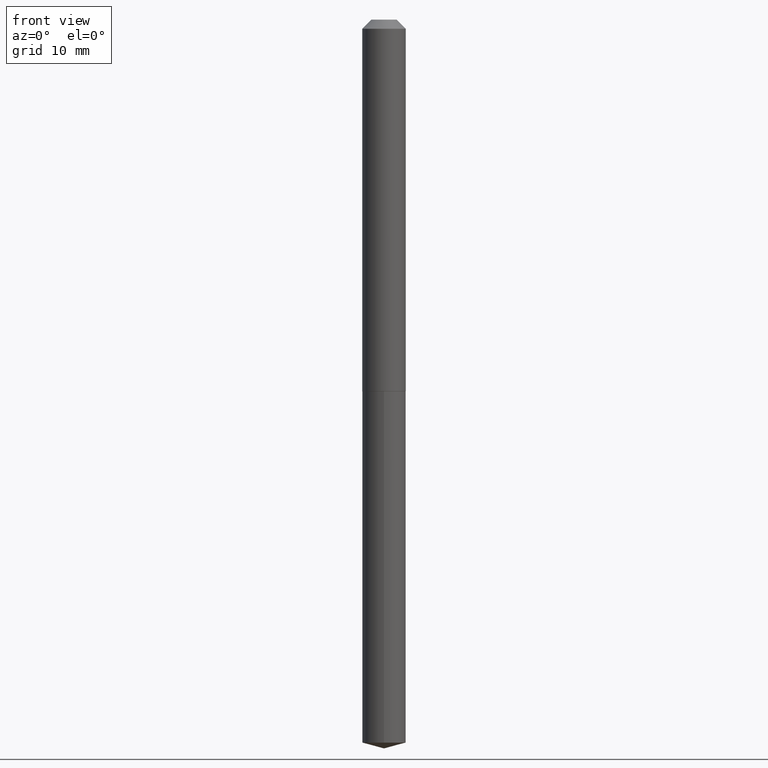
[diagram: clean part render]
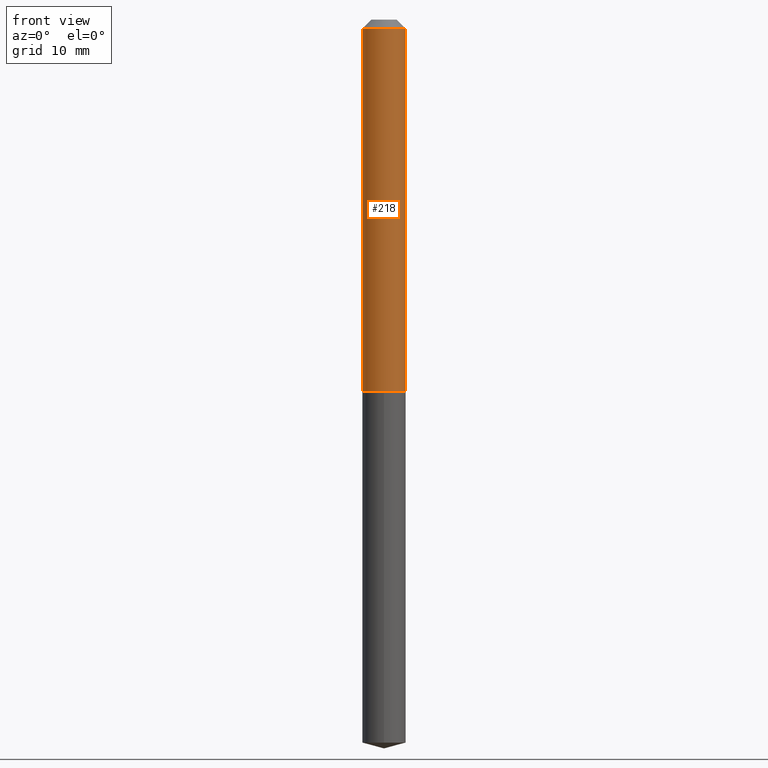
[diagram: same view with one face highlighted and labeled with its STEP entity id]
A machine part, front view. The second image highlights one B-rep face of the part: STEP entity #218.
In plain terms, the highlighted cylindrical surface (edge-blend (fillet) strip) has radius 1.8987 mm, axis along (-0, 0, 1).
Its self-contained STEP definition (entity closure, byte-faithful):
#20 = CARTESIAN_POINT ( 'NONE',  ( 3.115527259079864567E-29, -4.448147225686167798E-15, -1.274000000000000021 ) ) ;
#21 = CARTESIAN_POINT ( 'NONE',  ( 7.642090019328599159E-31, -1.091087918388489774E-16, -0.03125000000000019429 ) ) ;
#26 = LINE ( 'NONE', #354, #140 ) ;
#42 = CARTESIAN_POINT ( 'NONE',  ( -0.07474999999999999700, -1.747497313781831905E-15, -0.03125000000000019429 ) ) ;
#50 = DIRECTION ( 'NONE',  ( 1.000000000000000000, -6.982962677686268288E-15, 4.876176775795935793E-29 ) ) ;
#56 = VERTEX_POINT ( 'NONE', #103 ) ;
#83 = VERTEX_POINT ( 'NONE', #42 ) ;
#103 = CARTESIAN_POINT ( 'NONE',  ( 0.07475000000000013578, -4.970123685843217876E-15, -1.274000000000000021 ) ) ;
#114 = CYLINDRICAL_SURFACE ( 'NONE', #248, 0.07475000000000006639 ) ;
#120 = VECTOR ( 'NONE', #345, 39.37007874015748143 ) ;
#127 = EDGE_CURVE ( 'NONE', #363, #56, #370, .T. ) ;
#131 = CARTESIAN_POINT ( 'NONE',  ( 0.07475000000000006639, -5.219764601570489928E-16, 3.644942139907465396E-30 ) ) ;
#132 = CIRCLE ( 'NONE', #366, 0.07474999999999999700 ) ;
#134 = DIRECTION ( 'NONE',  ( -2.445468806185136877E-29, 3.491481338843145188E-15, 1.000000000000000000 ) ) ;
#140 = VECTOR ( 'NONE', #134, 39.37007874015748143 ) ;
#158 = EDGE_LOOP ( 'NONE', ( #329, #238, #279, #299 ) ) ;
#171 = DIRECTION ( 'NONE',  ( -2.445468806185136597E-29, 3.491481338843145583E-15, 1.000000000000000000 ) ) ;
#218 = ADVANCED_FACE ( 'NONE', ( #384 ), #114, .T. ) ;
#230 = CARTESIAN_POINT ( 'NONE',  ( 0.000000000000000000, 0.000000000000000000, 0.000000000000000000 ) ) ;
#238 = ORIENTED_EDGE ( 'NONE', *, *, #127, .T. ) ;
#248 = AXIS2_PLACEMENT_3D ( 'NONE', #230, #321, #50 ) ;
#259 = LINE ( 'NONE', #131, #120 ) ;
#272 = EDGE_CURVE ( 'NONE', #363, #83, #26, .T. ) ;
#276 = EDGE_CURVE ( 'NONE', #83, #317, #132, .T. ) ;
#279 = ORIENTED_EDGE ( 'NONE', *, *, #302, .T. ) ;
#286 = CARTESIAN_POINT ( 'NONE',  ( 0.07474999999999999700, -6.310852519958974032E-16, -0.03125000000000019429 ) ) ;
#292 = CARTESIAN_POINT ( 'NONE',  ( -0.07475000000000013578, -3.917016530705492240E-15, -1.274000000000000021 ) ) ;
#299 = ORIENTED_EDGE ( 'NONE', *, *, #276, .F. ) ;
#302 = EDGE_CURVE ( 'NONE', #56, #317, #259, .T. ) ;
#317 = VERTEX_POINT ( 'NONE', #286 ) ;
#320 = DIRECTION ( 'NONE',  ( 1.000000000000000000, -6.982962677686266711E-15, 0.000000000000000000 ) ) ;
#321 = DIRECTION ( 'NONE',  ( -2.445468806185136597E-29, 3.491481338843145583E-15, 1.000000000000000000 ) ) ;
#329 = ORIENTED_EDGE ( 'NONE', *, *, #272, .F. ) ;
#342 = AXIS2_PLACEMENT_3D ( 'NONE', #20, #346, #385 ) ;
#345 = DIRECTION ( 'NONE',  ( -2.445468806185136877E-29, 3.491481338843145188E-15, 1.000000000000000000 ) ) ;
#346 = DIRECTION ( 'NONE',  ( -2.445468806185136597E-29, 3.491481338843145583E-15, 1.000000000000000000 ) ) ;
#354 = CARTESIAN_POINT ( 'NONE',  ( -0.07475000000000006639, 5.311306949806753607E-16, -3.676903979965545675E-30 ) ) ;
#363 = VERTEX_POINT ( 'NONE', #292 ) ;
#366 = AXIS2_PLACEMENT_3D ( 'NONE', #21, #171, #320 ) ;
#370 = CIRCLE ( 'NONE', #342, 0.07475000000000013578 ) ;
#384 = FACE_OUTER_BOUND ( 'NONE', #158, .T. ) ;
#385 = DIRECTION ( 'NONE',  ( 1.000000000000000000, -6.982962677686272233E-15, 0.000000000000000000 ) ) ;